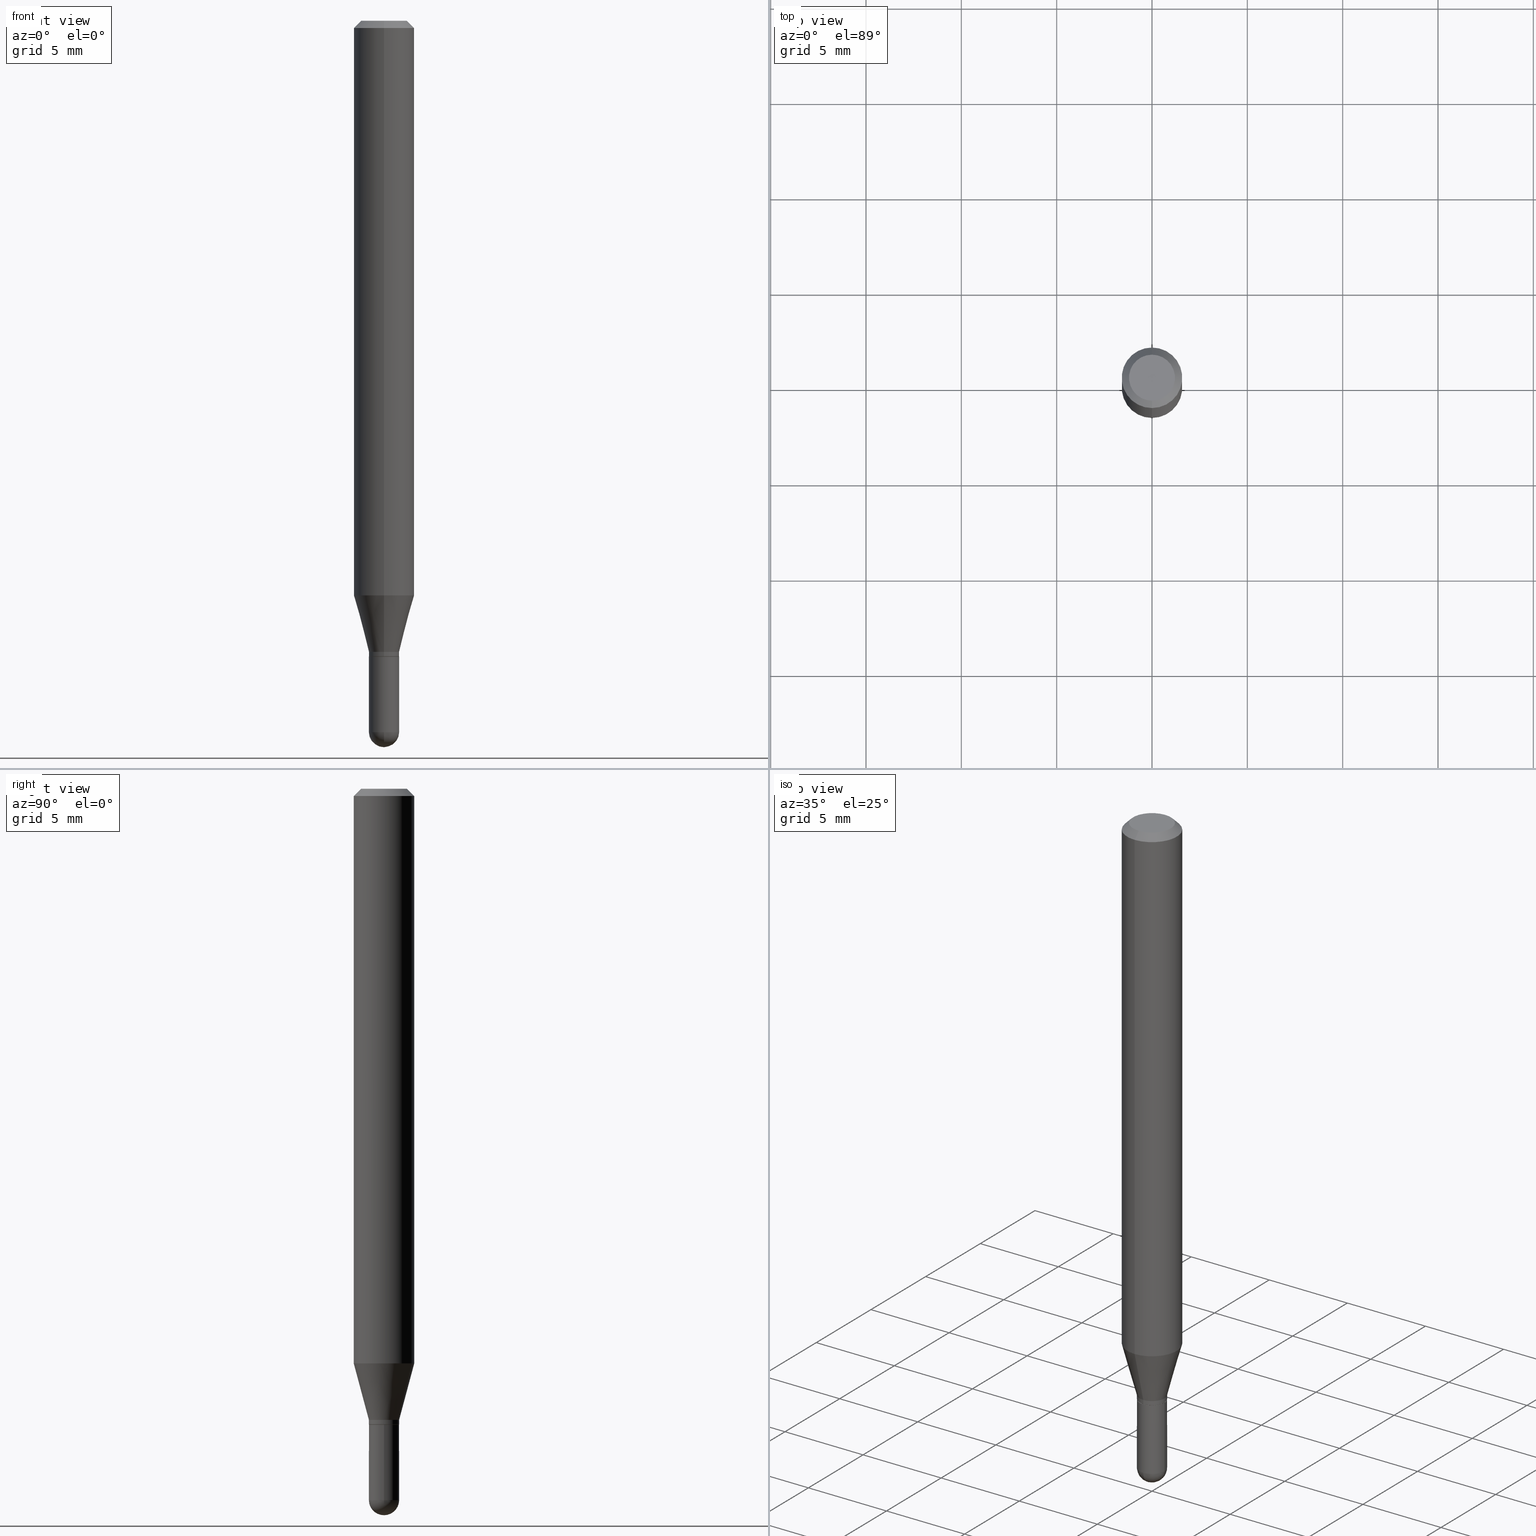
[diagram: canonical four-view strip — front | top / right | iso, engineering-drawing reading convention]
A machine part, canonical four-view strip (front | top / right | iso — engineering-drawing reading convention). The complete STEP part file that produces these views, byte-faithful:
ISO-10303-21;
HEADER;
FILE_DESCRIPTION (( 'STEP AP203' ),
    '1' );
FILE_NAME ('91267.STEP',
    '2024-03-08T13:40:38',
    ( '' ),
    ( '' ),
    'SwSTEP 2.0',
    'SolidWorks 2023',
    '' );
FILE_SCHEMA (( 'CONFIG_CONTROL_DESIGN' ));
ENDSEC;

DATA;
#1 = DIRECTION ( 'NONE',  ( -7.105427357601001859E-15, -1.000000000000000000, 0.000000000000000000 ) ) ;
#2 = ORIENTED_EDGE ( 'NONE', *, *, #235, .F. ) ;
#3 = PERSON_AND_ORGANIZATION ( #491, #252 ) ;
#4 = SHAPE_DEFINITION_REPRESENTATION ( #205, #375 ) ;
#5 = EDGE_LOOP ( 'NONE', ( #219, #83, #27, #449, #45 ) ) ;
#6 = EDGE_CURVE ( 'NONE', #424, #481, #35, .T. ) ;
#7 = CYLINDRICAL_SURFACE ( 'NONE', #453, 0.03124999999999939285 ) ;
#8 = ORIENTED_EDGE ( 'NONE', *, *, #6, .T. ) ;
#9 = CIRCLE ( 'NONE', #63, 0.06249999999999999306 ) ;
#10 = AXIS2_PLACEMENT_3D ( 'NONE', #221, #493, #180 ) ;
#11 = LOCAL_TIME ( 8, 40, 38.00000000000000000, #60 ) ;
#12 =( LENGTH_UNIT ( ) NAMED_UNIT ( * ) SI_UNIT ( $, .METRE. ) );
#13 = EDGE_CURVE ( 'NONE', #325, #158, #240, .T. ) ;
#14 = DIRECTION ( 'NONE',  ( -6.982962677686265922E-15, -1.000000000000000000, 4.370956789862821938E-15 ) ) ;
#15 = CARTESIAN_POINT ( 'NONE',  ( -2.220446049249960559E-16, -0.03125000000000523193, -1.468749999999999556 ) ) ;
#16 = DIRECTION ( 'NONE',  ( -6.982962677686265133E-15, -1.000000000000000000, 0.000000000000000000 ) ) ;
#17 = CARTESIAN_POINT ( 'NONE',  ( 4.440892098500914096E-16, 0.06249999999999582279, -1.186373412263470595 ) ) ;
#18 = DIRECTION ( 'NONE',  ( -6.982962677686265922E-15, -1.000000000000000000, 3.487252007655688453E-15 ) ) ;
#19 = VECTOR ( 'NONE', #136, 39.37007874015748143 ) ;
#20 = CIRCLE ( 'NONE', #262, 0.04750000000000004219 ) ;
#21 = DIRECTION ( 'NONE',  ( -2.448422132368495575E-29, 3.487252007655688059E-15, 1.000000000000000000 ) ) ;
#22 = ADVANCED_FACE ( 'NONE', ( #291 ), #478, .T. ) ;
#23 = CARTESIAN_POINT ( 'NONE',  ( 0.000000000000000000, 0.000000000000000000, 0.000000000000000000 ) ) ;
#24 = APPROVAL_ROLE ( '' ) ;
#25 = CC_DESIGN_DATE_AND_TIME_ASSIGNMENT ( #504, #157, ( #292 ) ) ;
#26 = VECTOR ( 'NONE', #444, 39.37007874015748143 ) ;
#27 = ORIENTED_EDGE ( 'NONE', *, *, #450, .T. ) ;
#28 = DIRECTION ( 'NONE',  ( 1.000000000000000000, -6.982962677686267499E-15, 0.000000000000000000 ) ) ;
#29 = ADVANCED_FACE ( 'NONE', ( #203 ), #7, .T. ) ;
#30 = FACE_OUTER_BOUND ( 'NONE', #78, .T. ) ;
#31 = DIRECTION ( 'NONE',  ( -6.982962677686265922E-15, -1.000000000000000000, 3.487252007655688059E-15 ) ) ;
#32 = ORIENTED_EDGE ( 'NONE', *, *, #263, .F. ) ;
#33 = CARTESIAN_POINT ( 'NONE',  ( -2.147261023388176740E-16, -0.03075000000000417330, -1.312999999999999945 ) ) ;
#34 = CARTESIAN_POINT ( 'NONE',  ( 3.672633198552774961E-31, -5.230878011483577990E-17, -0.01500000000000012955 ) ) ;
#35 = CIRCLE ( 'NONE', #161, 0.06249999999999999306 ) ;
#36 = CYLINDRICAL_SURFACE ( 'NONE', #216, 0.03124999999999956285 ) ;
#37 = EDGE_LOOP ( 'NONE', ( #399, #49, #356, #167 ) ) ;
#38 = CARTESIAN_POINT ( 'NONE',  ( -0.03124999999999956285, -4.634169502238430896E-15, -1.468749999999999556 ) ) ;
#39 = ORIENTED_EDGE ( 'NONE', *, *, #293, .F. ) ;
#40 = CARTESIAN_POINT ( 'NONE',  ( 0.000000000000000000, 0.000000000000000000, 0.000000000000000000 ) ) ;
#41 = ORIENTED_EDGE ( 'NONE', *, *, #498, .F. ) ;
#42 = AXIS2_PLACEMENT_3D ( 'NONE', #141, #107, #472 ) ;
#43 = PERSON_AND_ORGANIZATION ( #491, #252 ) ;
#44 = FACE_OUTER_BOUND ( 'NONE', #5, .T. ) ;
#45 = ORIENTED_EDGE ( 'NONE', *, *, #408, .F. ) ;
#46 =( CONVERSION_BASED_UNIT ( 'INCH', #209 ) LENGTH_UNIT ( ) NAMED_UNIT ( #386 ) );
#47 = UNCERTAINTY_MEASURE_WITH_UNIT (LENGTH_MEASURE( 1.000000000000000082E-05 ), #46, 'distance_accuracy_value', 'NONE');
#48 = DIRECTION ( 'NONE',  ( -6.982962677686265922E-15, -1.000000000000000000, 0.000000000000000000 ) ) ;
#49 = ORIENTED_EDGE ( 'NONE', *, *, #331, .T. ) ;
#50 = ADVANCED_FACE ( 'NONE', ( #328 ), #102, .F. ) ;
#51 = EDGE_LOOP ( 'NONE', ( #195, #66, #320, #110 ) ) ;
#52 = AXIS2_PLACEMENT_3D ( 'NONE', #332, #494, #260 ) ;
#53 = AXIS2_PLACEMENT_3D ( 'NONE', #395, #347, #470 ) ;
#54 = DIRECTION ( 'NONE',  ( -6.982962677686265922E-15, -1.000000000000000000, 0.000000000000000000 ) ) ;
#55 = EDGE_CURVE ( 'NONE', #418, #89, #67, .T. ) ;
#56 = ORIENTED_EDGE ( 'NONE', *, *, #95, .F. ) ;
#57 = VECTOR ( 'NONE', #451, 39.37007874015748143 ) ;
#58 = AXIS2_PLACEMENT_3D ( 'NONE', #118, #109, #267 ) ;
#59 = CARTESIAN_POINT ( 'NONE',  ( -2.147261023388176740E-16, -0.03075000000000417330, -1.312999999999999945 ) ) ;
#60 = COORDINATED_UNIVERSAL_TIME_OFFSET ( 5, 0, .BEHIND. ) ;
#61 = DIRECTION ( 'NONE',  ( -2.448422132368495575E-29, 3.487252007655688059E-15, 1.000000000000000000 ) ) ;
#62 = CARTESIAN_POINT ( 'NONE',  ( 2.220446049250581294E-16, 0.03124999999999474032, -1.302999999999999714 ) ) ;
#63 = AXIS2_PLACEMENT_3D ( 'NONE', #358, #188, #416 ) ;
#64 = APPROVAL_PERSON_ORGANIZATION ( #467, #443, #81 ) ;
#65 = CARTESIAN_POINT ( 'NONE',  ( 3.214778259799833764E-29, -4.578761886051918340E-15, -1.312999999999999945 ) ) ;
#66 = ORIENTED_EDGE ( 'NONE', *, *, #144, .T. ) ;
#67 = LINE ( 'NONE', #369, #302 ) ;
#68 = DIRECTION ( 'NONE',  ( -2.448422132368495575E-29, 3.487252007655688059E-15, 1.000000000000000000 ) ) ;
#69 = CARTESIAN_POINT ( 'NONE',  ( 2.182175836777293120E-16, 0.03124999999999452868, -1.468749999999999556 ) ) ;
#70 = ORIENTED_EDGE ( 'NONE', *, *, #132, .T. ) ;
#71 = LINE ( 'NONE', #428, #133 ) ;
#72 = DIRECTION ( 'NONE',  ( 6.982962677686265922E-15, 1.000000000000000000, -3.487252007655688059E-15 ) ) ;
#73 = CIRCLE ( 'NONE', #432, 0.03124999999999956285 ) ;
#74 = ORIENTED_EDGE ( 'NONE', *, *, #421, .F. ) ;
#75 = DIRECTION ( 'NONE',  ( -2.448422132368495295E-29, 3.487252007655688059E-15, 1.000000000000000000 ) ) ;
#76 = ORIENTED_EDGE ( 'NONE', *, *, #388, .F. ) ;
#77 = PLANE ( 'NONE',  #354 ) ;
#78 = EDGE_LOOP ( 'NONE', ( #176, #278, #56, #311 ) ) ;
#79 = APPROVAL_STATUS ( 'not_yet_approved' ) ;
#80 = LINE ( 'NONE', #466, #303 ) ;
#81 = APPROVAL_ROLE ( '' ) ;
#82 = AXIS2_PLACEMENT_3D ( 'NONE', #457, #100, #258 ) ;
#83 = ORIENTED_EDGE ( 'NONE', *, *, #263, .T. ) ;
#84 = CARTESIAN_POINT ( 'NONE',  ( 3.210900542521084024E-29, -4.584314997901049810E-15, -1.312999999999999945 ) ) ;
#85 = CARTESIAN_POINT ( 'NONE',  ( -0.03124999999999956285, 2.220446049250282019E-16, -1.537167215704636512E-30 ) ) ;
#86 = ORIENTED_EDGE ( 'NONE', *, *, #323, .T. ) ;
#87 =( NAMED_UNIT ( * ) SI_UNIT ( $, .STERADIAN. ) SOLID_ANGLE_UNIT ( ) );
#88 = CARTESIAN_POINT ( 'NONE',  ( 3.192810954353404437E-45, -4.547474172626968714E-31, -1.304027974647010610E-16 ) ) ;
#89 = VERTEX_POINT ( 'NONE', #500 ) ;
#90 = CLOSED_SHELL ( 'NONE', ( #117, #121, #50, #404, #314 ) ) ;
#91 = CC_DESIGN_APPROVAL ( #482, ( #318 ) ) ;
#92 = CARTESIAN_POINT ( 'NONE',  ( -4.364351673553916201E-16, -0.06250000000000000000, 2.179532504784805037E-16 ) ) ;
#93 = CALENDAR_DATE ( 2024, 8, 3 ) ;
#94 = PERSON_AND_ORGANIZATION_ROLE ( 'creator' ) ;
#95 = EDGE_CURVE ( 'NONE', #440, #126, #111, .T. ) ;
#96 = SPHERICAL_SURFACE ( 'NONE', #10, 0.03125000000000019429 ) ;
#97 = CALENDAR_DATE ( 2024, 8, 3 ) ;
#98 = CIRCLE ( 'NONE', #420, 0.04750000000000004219 ) ;
#99 = LOCAL_TIME ( 8, 40, 38.00000000000000000, #452 ) ;
#100 = DIRECTION ( 'NONE',  ( -2.445468806185136597E-29, 3.491481338843145583E-15, 1.000000000000000000 ) ) ;
#101 = EDGE_CURVE ( 'NONE', #158, #325, #327, .T. ) ;
#102 = PLANE ( 'NONE',  #367 ) ;
#103 = EDGE_CURVE ( 'NONE', #440, #237, #497, .T. ) ;
#104 = AXIS2_PLACEMENT_3D ( 'NONE', #23, #172, #31 ) ;
#105 = APPROVAL_PERSON_ORGANIZATION ( #43, #482, #24 ) ;
#106 = CARTESIAN_POINT ( 'NONE',  ( 3.330669073875748681E-16, 0.03124999999999473685, -1.302999999999999714 ) ) ;
#107 = DIRECTION ( 'NONE',  ( -1.000000000000000000, 6.982962677686265922E-15, -4.883557194083112901E-29 ) ) ;
#108 = DIRECTION ( 'NONE',  ( -6.982962677686265922E-15, -1.000000000000000000, 0.000000000000000000 ) ) ;
#109 = DIRECTION ( 'NONE',  ( -2.445468806185136597E-29, 3.491481338843145583E-15, 1.000000000000000000 ) ) ;
#110 = ORIENTED_EDGE ( 'NONE', *, *, #508, .F. ) ;
#111 = CIRCLE ( 'NONE', #226, 0.03124999999999950040 ) ;
#112 = CARTESIAN_POINT ( 'NONE',  ( 2.202682480856599234E-16, 0.03074999999999501396, -1.312999999999999945 ) ) ;
#113 = CC_DESIGN_PERSON_AND_ORGANIZATION_ASSIGNMENT ( #329, #442, ( #292 ) ) ;
#114 = ORIENTED_EDGE ( 'NONE', *, *, #448, .F. ) ;
#115 = DIRECTION ( 'NONE',  ( -2.448422132368495575E-29, 3.487252007655688059E-15, 1.000000000000000000 ) ) ;
#116 = VERTEX_POINT ( 'NONE', #410 ) ;
#117 = ADVANCED_FACE ( 'NONE', ( #138 ), #140, .T. ) ;
#118 = CARTESIAN_POINT ( 'NONE',  ( 3.591782309084418255E-29, -5.128113216425867498E-15, -1.468749999999999556 ) ) ;
#119 = ORIENTED_EDGE ( 'NONE', *, *, #485, .F. ) ;
#120 = DIRECTION ( 'NONE',  ( -2.448422132368495575E-29, 3.487252007655688059E-15, 1.000000000000000000 ) ) ;
#121 = ADVANCED_FACE ( 'NONE', ( #454 ), #96, .T. ) ;
#122 = AXIS2_PLACEMENT_3D ( 'NONE', #413, #377, #28 ) ;
#123 = ORIENTED_EDGE ( 'NONE', *, *, #448, .T. ) ;
#124 = CIRCLE ( 'NONE', #58, 0.03124999999999956285 ) ;
#125 = CARTESIAN_POINT ( 'NONE',  ( 3.190294038476148960E-29, -4.543889365975361704E-15, -1.302999999999999714 ) ) ;
#126 = VERTEX_POINT ( 'NONE', #295 ) ;
#127 = CARTESIAN_POINT ( 'NONE',  ( 3.279702199342737368E-29, -5.575029696072707502E-15, -1.468749999999999556 ) ) ;
#128 = PERSON_AND_ORGANIZATION_ROLE ( 'design_supplier' ) ;
#129 = LINE ( 'NONE', #85, #151 ) ;
#130 = PRODUCT ( '91267', '91267', '', ( #403 ) ) ;
#131 = AXIS2_PLACEMENT_3D ( 'NONE', #306, #241, #312 ) ;
#132 = EDGE_CURVE ( 'NONE', #418, #201, #362, .T. ) ;
#133 = VECTOR ( 'NONE', #146, 39.37007874015748143 ) ;
#134 = EDGE_CURVE ( 'NONE', #474, #392, #280, .T. ) ;
#135 = ORIENTED_EDGE ( 'NONE', *, *, #350, .F. ) ;
#136 = DIRECTION ( 'NONE',  ( -2.448422132368495295E-29, 3.487252007655688059E-15, 1.000000000000000000 ) ) ;
#137 = LOCAL_TIME ( 8, 40, 38.00000000000000000, #459 ) ;
#138 = FACE_OUTER_BOUND ( 'NONE', #233, .T. ) ;
#139 = APPLICATION_CONTEXT ( 'configuration controlled 3d designs of mechanical parts and assemblies' ) ;
#140 = CYLINDRICAL_SURFACE ( 'NONE', #501, 0.03124999999999956285 ) ;
#141 = CARTESIAN_POINT ( 'NONE',  ( 3.279702199342737368E-29, -5.575029696072707502E-15, -1.468749999999999556 ) ) ;
#142 = CIRCLE ( 'NONE', #422, 0.03124999999999928529 ) ;
#143 = FACE_OUTER_BOUND ( 'NONE', #273, .T. ) ;
#144 = EDGE_CURVE ( 'NONE', #149, #424, #412, .T. ) ;
#145 = CARTESIAN_POINT ( 'NONE',  ( 3.192810954353404437E-45, -4.547474172626968714E-31, -1.304027974647010610E-16 ) ) ;
#146 = DIRECTION ( 'NONE',  ( -4.851104656540959542E-15, -0.7071067811865493491, -0.7071067811865456854 ) ) ;
#147 = DIRECTION ( 'NONE',  ( -2.448422132368495575E-29, 3.487252007655688059E-15, 1.000000000000000000 ) ) ;
#148 = APPROVAL_DATE_TIME ( #281, #443 ) ;
#149 = VERTEX_POINT ( 'NONE', #106 ) ;
#150 = DIRECTION ( 'NONE',  ( -2.448422132368495575E-29, 3.487252007655688059E-15, 1.000000000000000000 ) ) ;
#151 = VECTOR ( 'NONE', #341, 39.37007874015748143 ) ;
#152 = ADVANCED_FACE ( 'NONE', ( #371 ), #255, .T. ) ;
#153 = ORIENTED_EDGE ( 'NONE', *, *, #408, .T. ) ;
#154 = APPROVAL_DATE_TIME ( #256, #264 ) ;
#155 = APPLICATION_CONTEXT ( 'configuration controlled 3d designs of mechanical parts and assemblies' ) ;
#156 = CARTESIAN_POINT ( 'NONE',  ( -3.773273898774342241E-16, -0.04750000000000004219, 3.524167289894427289E-17 ) ) ;
#157 = DATE_TIME_ROLE ( 'classification_date' ) ;
#158 = VERTEX_POINT ( 'NONE', #59 ) ;
#159 = CARTESIAN_POINT ( 'NONE',  ( -4.364351673553627281E-16, -0.06250000000000416334, -1.186373412263470373 ) ) ;
#160 = ORIENTED_EDGE ( 'NONE', *, *, #417, .T. ) ;
#161 = AXIS2_PLACEMENT_3D ( 'NONE', #402, #245, #14 ) ;
#162 = ORIENTED_EDGE ( 'NONE', *, *, #508, .T. ) ;
#163 = APPROVAL_PERSON_ORGANIZATION ( #365, #264, #238 ) ;
#164 = MANIFOLD_SOLID_BREP ( 'Body-Move/Copy2[2]', #499 ) ;
#165 = DIRECTION ( 'NONE',  ( 1.000000000000000000, -6.982962677686265922E-15, 4.883557194083112340E-29 ) ) ;
#166 = CARTESIAN_POINT ( 'NONE',  ( 3.672633198552774961E-31, -5.230878011483577990E-17, -0.01500000000000012955 ) ) ;
#167 = ORIENTED_EDGE ( 'NONE', *, *, #103, .F. ) ;
#168 = DATE_TIME_ROLE ( 'creation_date' ) ;
#169 = ADVANCED_FACE ( 'NONE', ( #217 ), #269, .T. ) ;
#170 = AXIS2_PLACEMENT_3D ( 'NONE', #464, #147, #108 ) ;
#171 = CC_DESIGN_PERSON_AND_ORGANIZATION_ASSIGNMENT ( #3, #475, ( #373 ) ) ;
#172 = DIRECTION ( 'NONE',  ( -2.448422132368495575E-29, 3.487252007655688059E-15, 1.000000000000000000 ) ) ;
#173 = AXIS2_PLACEMENT_3D ( 'NONE', #40, #430, #468 ) ;
#174 = AXIS2_PLACEMENT_3D ( 'NONE', #510, #150, #484 ) ;
#175 = EDGE_CURVE ( 'NONE', #201, #243, #343, .T. ) ;
#176 = ORIENTED_EDGE ( 'NONE', *, *, #101, .T. ) ;
#177 = FACE_OUTER_BOUND ( 'NONE', #438, .T. ) ;
#178 = PRODUCT_RELATED_PRODUCT_CATEGORY ( 'detail', '', ( #130 ) ) ;
#179 = CARTESIAN_POINT ( 'NONE',  ( 3.214778259799833764E-29, -4.578761886051918340E-15, -1.312999999999999945 ) ) ;
#180 = DIRECTION ( 'NONE',  ( 6.982962677686265922E-15, 1.000000000000000000, 0.000000000000000000 ) ) ;
#181 = ORIENTED_EDGE ( 'NONE', *, *, #134, .T. ) ;
#182 = VECTOR ( 'NONE', #346, 39.37007874015748143 ) ;
#183 = CYLINDRICAL_SURFACE ( 'NONE', #53, 0.06250000000000000000 ) ;
#184 = ORIENTED_EDGE ( 'NONE', *, *, #323, .F. ) ;
#185 = ADVANCED_FACE ( 'NONE', ( #177 ), #319, .T. ) ;
#186 = CARTESIAN_POINT ( 'NONE',  ( 3.316907271900979054E-16, 0.04750000000000004219, -2.308458690959958706E-16 ) ) ;
#187 = EDGE_LOOP ( 'NONE', ( #268, #153 ) ) ;
#188 = DIRECTION ( 'NONE',  ( -2.448422132368495575E-29, 3.487252007655688059E-15, 1.000000000000000000 ) ) ;
#189 = EDGE_CURVE ( 'NONE', #116, #301, #98, .T. ) ;
#190 = ORIENTED_EDGE ( 'NONE', *, *, #144, .F. ) ;
#191 = CONICAL_SURFACE ( 'NONE', #487, 0.06250000000000001388, 0.7853981633974473908 ) ;
#192 = CARTESIAN_POINT ( 'NONE',  ( 3.279702199342737368E-29, -5.575029696072707502E-15, -1.468749999999999556 ) ) ;
#193 = CONICAL_SURFACE ( 'NONE', #368, 0.03074999999999959363, 0.7853981633974568277 ) ;
#194 = ORIENTED_EDGE ( 'NONE', *, *, #134, .F. ) ;
#195 = ORIENTED_EDGE ( 'NONE', *, *, #439, .T. ) ;
#196 = DATE_AND_TIME ( #97, #99 ) ;
#197 = LOCAL_TIME ( 8, 40, 38.00000000000000000, #200 ) ;
#198 = DIRECTION ( 'NONE',  ( -2.448422132368495575E-29, 3.487252007655688059E-15, 1.000000000000000000 ) ) ;
#199 = DIRECTION ( 'NONE',  ( -6.982962677686265133E-15, -1.000000000000000000, 3.487252007655688059E-15 ) ) ;
#200 = COORDINATED_UNIVERSAL_TIME_OFFSET ( 5, 0, .BEHIND. ) ;
#201 = VERTEX_POINT ( 'NONE', #69 ) ;
#202 = DIRECTION ( 'NONE',  ( -2.448422132368495295E-29, 3.487252007655688059E-15, 1.000000000000000000 ) ) ;
#203 = FACE_OUTER_BOUND ( 'NONE', #37, .T. ) ;
#204 = ORIENTED_EDGE ( 'NONE', *, *, #388, .T. ) ;
#205 = PRODUCT_DEFINITION_SHAPE ( 'NONE', 'NONE',  #318 ) ;
#206 = DIRECTION ( 'NONE',  ( -2.448422132368495575E-29, 3.487252007655688059E-15, 1.000000000000000000 ) ) ;
#207 = ORIENTED_EDGE ( 'NONE', *, *, #421, .T. ) ;
#208 = VECTOR ( 'NONE', #75, 39.37007874015748143 ) ;
#209 = LENGTH_MEASURE_WITH_UNIT ( LENGTH_MEASURE( 0.02539999999999999897 ), #12 );
#210 = CC_DESIGN_PERSON_AND_ORGANIZATION_ASSIGNMENT ( #214, #128, ( #373 ) ) ;
#211 = DIRECTION ( 'NONE',  ( -2.448422132368495575E-29, 3.487252007655688059E-15, 1.000000000000000000 ) ) ;
#212 = DIRECTION ( 'NONE',  ( 1.000000000000000000, -6.982962677686267499E-15, 0.000000000000000000 ) ) ;
#213 = CARTESIAN_POINT ( 'NONE',  ( 3.214778259799833764E-29, -4.578761886051918340E-15, -1.312999999999999945 ) ) ;
#214 = PERSON_AND_ORGANIZATION ( #491, #252 ) ;
#215 = ADVANCED_FACE ( 'NONE', ( #307 ), #225, .T. ) ;
#216 = AXIS2_PLACEMENT_3D ( 'NONE', #265, #348, #506 ) ;
#217 = FACE_OUTER_BOUND ( 'NONE', #465, .T. ) ;
#218 = DIRECTION ( 'NONE',  ( -6.982962677686265922E-15, -1.000000000000000000, 3.483106191921934765E-15 ) ) ;
#219 = ORIENTED_EDGE ( 'NONE', *, *, #376, .F. ) ;
#220 = AXIS2_PLACEMENT_3D ( 'NONE', #84, #239, #315 ) ;
#221 = CARTESIAN_POINT ( 'NONE',  ( 3.279702199342737368E-29, -5.575029696072707502E-15, -1.468749999999999556 ) ) ;
#222 = DIRECTION ( 'NONE',  ( -2.445468806185136597E-29, 3.491481338843145583E-15, 1.000000000000000000 ) ) ;
#223 = ADVANCED_FACE ( 'NONE', ( #503 ), #191, .T. ) ;
#224 = DIRECTION ( 'NONE',  ( -6.982962677686265133E-15, -1.000000000000000000, 0.000000000000000000 ) ) ;
#225 = CYLINDRICAL_SURFACE ( 'NONE', #173, 0.03124999999999939285 ) ;
#226 = AXIS2_PLACEMENT_3D ( 'NONE', #299, #334, #380 ) ;
#227 = AXIS2_PLACEMENT_3D ( 'NONE', #304, #222, #379 ) ;
#228 = CARTESIAN_POINT ( 'NONE',  ( 4.364351673553921131E-16, 0.06249999999999996531, -0.01500000000000034812 ) ) ;
#229 = CALENDAR_DATE ( 2024, 8, 3 ) ;
#230 = ORIENTED_EDGE ( 'NONE', *, *, #231, .T. ) ;
#231 = EDGE_CURVE ( 'NONE', #481, #424, #9, .T. ) ;
#232 = FACE_OUTER_BOUND ( 'NONE', #349, .T. ) ;
#233 = EDGE_LOOP ( 'NONE', ( #352, #471, #119, #483, #70 ) ) ;
#234 = DATE_AND_TIME ( #374, #11 ) ;
#235 = EDGE_CURVE ( 'NONE', #116, #392, #355, .T. ) ;
#236 = DIRECTION ( 'NONE',  ( -6.982962677686265922E-15, -1.000000000000000000, 3.487252007655688059E-15 ) ) ;
#237 = VERTEX_POINT ( 'NONE', #275 ) ;
#238 = APPROVAL_ROLE ( '' ) ;
#239 = DIRECTION ( 'NONE',  ( -2.445468806185136597E-29, 3.491481338843145583E-15, 1.000000000000000000 ) ) ;
#240 = CIRCLE ( 'NONE', #445, 0.03074999999999959363 ) ;
#241 = DIRECTION ( 'NONE',  ( 2.448422132368495575E-29, -3.487252007655688059E-15, -1.000000000000000000 ) ) ;
#242 = CIRCLE ( 'NONE', #446, 0.06250000000000001388 ) ;
#243 = VERTEX_POINT ( 'NONE', #38 ) ;
#244 = DIRECTION ( 'NONE',  ( -2.448422132368495575E-29, 3.487252007655688059E-15, 1.000000000000000000 ) ) ;
#245 = DIRECTION ( 'NONE',  ( -2.448422132368495575E-29, 3.487252007655688059E-15, 1.000000000000000000 ) ) ;
#246 = ADVANCED_FACE ( 'NONE', ( #391 ), #183, .T. ) ;
#247 = ORIENTED_EDGE ( 'NONE', *, *, #463, .F. ) ;
#248 = LINE ( 'NONE', #251, #26 ) ;
#249 = EDGE_LOOP ( 'NONE', ( #114, #204, #181, #2 ) ) ;
#250 = EDGE_CURVE ( 'NONE', #325, #126, #80, .T. ) ;
#251 = CARTESIAN_POINT ( 'NONE',  ( -2.182175836776589308E-16, -0.03125000000000383027, -1.302999999999999714 ) ) ;
#252 = ORGANIZATION ( 'UNSPECIFIED', 'UNSPECIFIED', '' ) ;
#253 = DIRECTION ( 'NONE',  ( -2.448422132368495575E-29, 3.487252007655688059E-15, 1.000000000000000000 ) ) ;
#254 = COORDINATED_UNIVERSAL_TIME_OFFSET ( 5, 0, .BEHIND. ) ;
#255 = CYLINDRICAL_SURFACE ( 'NONE', #104, 0.06250000000000000000 ) ;
#256 = DATE_AND_TIME ( #93, #363 ) ;
#257 =( GEOMETRIC_REPRESENTATION_CONTEXT ( 3 ) GLOBAL_UNCERTAINTY_ASSIGNED_CONTEXT ( ( #47 ) ) GLOBAL_UNIT_ASSIGNED_CONTEXT ( ( #46, #436, #87 ) ) REPRESENTATION_CONTEXT ( 'NONE', 'WORKASPACE' ) );
#258 = DIRECTION ( 'NONE',  ( 1.000000000000000000, -6.982962677686267499E-15, 0.000000000000000000 ) ) ;
#259 = CARTESIAN_POINT ( 'NONE',  ( 3.672633198552774961E-31, -5.230878011483577990E-17, -0.01500000000000012955 ) ) ;
#260 = DIRECTION ( 'NONE',  ( -6.982962677686265133E-15, -1.000000000000000000, 0.000000000000000000 ) ) ;
#261 = VECTOR ( 'NONE', #310, 39.37007874015748143 ) ;
#262 = AXIS2_PLACEMENT_3D ( 'NONE', #88, #244, #433 ) ;
#263 = EDGE_CURVE ( 'NONE', #243, #480, #124, .T. ) ;
#264 = APPROVAL ( #79, 'UNSPECIFIED' ) ;
#265 = CARTESIAN_POINT ( 'NONE',  ( 0.000000000000000000, 0.000000000000000000, 0.000000000000000000 ) ) ;
#266 = FACE_OUTER_BOUND ( 'NONE', #390, .T. ) ;
#267 = DIRECTION ( 'NONE',  ( 1.000000000000000000, -6.982962677686267499E-15, 0.000000000000000000 ) ) ;
#268 = ORIENTED_EDGE ( 'NONE', *, *, #485, .T. ) ;
#269 = CONICAL_SURFACE ( 'NONE', #52, 0.03074999999999959363, 0.7853981633974568277 ) ;
#270 = CIRCLE ( 'NONE', #333, 0.03124999999999928529 ) ;
#271 = CARTESIAN_POINT ( 'NONE',  ( 4.440892098500920012E-16, 0.06249999999999996531, -0.01500000000000034812 ) ) ;
#272 = LINE ( 'NONE', #423, #208 ) ;
#273 = EDGE_LOOP ( 'NONE', ( #396, #123 ) ) ;
#274 = ADVANCED_FACE ( 'NONE', ( #143 ), #419, .F. ) ;
#275 = CARTESIAN_POINT ( 'NONE',  ( -2.182175836776589308E-16, -0.03125000000000383027, -1.302999999999999714 ) ) ;
#276 = ORIENTED_EDGE ( 'NONE', *, *, #13, .F. ) ;
#277 = FACE_OUTER_BOUND ( 'NONE', #489, .T. ) ;
#278 = ORIENTED_EDGE ( 'NONE', *, *, #250, .T. ) ;
#279 = DIRECTION ( 'NONE',  ( -2.445468806185136597E-29, 3.491481338843145583E-15, 1.000000000000000000 ) ) ;
#280 = CIRCLE ( 'NONE', #414, 0.06250000000000001388 ) ;
#281 = DATE_AND_TIME ( #229, #197 ) ;
#282 = CIRCLE ( 'NONE', #479, 0.03125000000000019429 ) ;
#283 = EDGE_LOOP ( 'NONE', ( #135, #8, #313, #434 ) ) ;
#284 = LINE ( 'NONE', #322, #384 ) ;
#285 = ADVANCED_FACE ( 'NONE', ( #277 ), #77, .F. ) ;
#286 = ORIENTED_EDGE ( 'NONE', *, *, #498, .T. ) ;
#287 = DIRECTION ( 'NONE',  ( 0.000000000000000000, 0.000000000000000000, 1.000000000000000000 ) ) ;
#288 = SECURITY_CLASSIFICATION_LEVEL ( 'unclassified' ) ;
#289 = DIRECTION ( 'NONE',  ( 1.000000000000000000, 0.000000000000000000, 0.000000000000000000 ) ) ;
#290 = AXIS2_PLACEMENT_3D ( 'NONE', #65, #21, #458 ) ;
#291 = FACE_OUTER_BOUND ( 'NONE', #51, .T. ) ;
#292 = SECURITY_CLASSIFICATION ( '', '', #288 ) ;
#293 = EDGE_CURVE ( 'NONE', #511, #480, #393, .T. ) ;
#294 = PERSON_AND_ORGANIZATION_ROLE ( 'design_owner' ) ;
#295 = CARTESIAN_POINT ( 'NONE',  ( 2.220446049250590661E-16, 0.03124999999999481318, -1.312500000000000000 ) ) ;
#296 = DIRECTION ( 'NONE',  ( 2.438088387897960049E-29, -3.491481338843145188E-15, -1.000000000000000000 ) ) ;
#297 = CARTESIAN_POINT ( 'NONE',  ( 0.000000000000000000, 0.000000000000000000, 0.000000000000000000 ) ) ;
#298 = CC_DESIGN_PERSON_AND_ORGANIZATION_ASSIGNMENT ( #490, #94, ( #318 ) ) ;
#299 = CARTESIAN_POINT ( 'NONE',  ( 3.213554048733650477E-29, -4.577018260048090430E-15, -1.312500000000000000 ) ) ;
#300 = CARTESIAN_POINT ( 'NONE',  ( 2.182175836777248993E-16, 0.03124999999999497971, -1.312999999999999945 ) ) ;
#301 = VERTEX_POINT ( 'NONE', #156 ) ;
#302 = VECTOR ( 'NONE', #461, 39.37007874015748143 ) ;
#303 = VECTOR ( 'NONE', #473, 39.37007874015748143 ) ;
#304 = CARTESIAN_POINT ( 'NONE',  ( 3.210900542521084024E-29, -4.584314997901049810E-15, -1.312999999999999945 ) ) ;
#305 = DIRECTION ( 'NONE',  ( 2.448422132368495575E-29, -3.487252007655688059E-15, -1.000000000000000000 ) ) ;
#306 = CARTESIAN_POINT ( 'NONE',  ( 3.672633198552774961E-31, -5.230878011483577990E-17, -0.01500000000000012955 ) ) ;
#307 = FACE_OUTER_BOUND ( 'NONE', #308, .T. ) ;
#308 = EDGE_LOOP ( 'NONE', ( #431, #86, #359, #74 ) ) ;
#309 = AXIS2_PLACEMENT_3D ( 'NONE', #321, #287, #289 ) ;
#310 = DIRECTION ( 'NONE',  ( 4.937700262164543309E-15, 0.7071067811865444641, -0.7071067811865505703 ) ) ;
#311 = ORIENTED_EDGE ( 'NONE', *, *, #417, .F. ) ;
#312 = DIRECTION ( 'NONE',  ( 6.982962677686265922E-15, 1.000000000000000000, -3.483106191921934765E-15 ) ) ;
#313 = ORIENTED_EDGE ( 'NONE', *, *, #463, .T. ) ;
#314 = ADVANCED_FACE ( 'NONE', ( #44 ), #36, .T. ) ;
#315 = DIRECTION ( 'NONE',  ( 1.000000000000000000, -6.982962677686267499E-15, 0.000000000000000000 ) ) ;
#316 = EDGE_LOOP ( 'NONE', ( #230, #387, #194, #247 ) ) ;
#317 = CARTESIAN_POINT ( 'NONE',  ( 0.03124999999999956285, -5.074431690841150939E-15, -1.468749999999999556 ) ) ;
#318 = PRODUCT_DEFINITION ( 'UNKNOWN', '', #373, #406 ) ;
#319 = CONICAL_SURFACE ( 'NONE', #131, 0.06250000000000001388, 0.7853981633974473908 ) ;
#320 = ORIENTED_EDGE ( 'NONE', *, *, #231, .F. ) ;
#321 = CARTESIAN_POINT ( 'NONE',  ( 0.000000000000000000, 0.000000000000000000, 0.000000000000000000 ) ) ;
#322 = CARTESIAN_POINT ( 'NONE',  ( 4.440892098500625669E-16, 0.06250000000000000000, -2.179532504784805037E-16 ) ) ;
#323 = EDGE_CURVE ( 'NONE', #126, #440, #415, .T. ) ;
#324 = CARTESIAN_POINT ( 'NONE',  ( 3.357459296862866067E-29, -5.682224977287888472E-15, -1.499999999999999556 ) ) ;
#325 = VERTEX_POINT ( 'NONE', #112 ) ;
#326 = CARTESIAN_POINT ( 'NONE',  ( 3.190294038476148960E-29, -4.543889365975361704E-15, -1.302999999999999714 ) ) ;
#327 = CIRCLE ( 'NONE', #290, 0.03074999999999959363 ) ;
#328 = FACE_OUTER_BOUND ( 'NONE', #187, .T. ) ;
#329 = PERSON_AND_ORGANIZATION ( #491, #252 ) ;
#330 = CIRCLE ( 'NONE', #220, 0.03124999999999956285 ) ;
#331 = EDGE_CURVE ( 'NONE', #126, #149, #272, .T. ) ;
#332 = CARTESIAN_POINT ( 'NONE',  ( 3.214778259799833764E-29, -4.578761886051918340E-15, -1.312999999999999945 ) ) ;
#333 = AXIS2_PLACEMENT_3D ( 'NONE', #326, #120, #401 ) ;
#334 = DIRECTION ( 'NONE',  ( -2.448422132368495575E-29, 3.487252007655688059E-15, 1.000000000000000000 ) ) ;
#335 = ADVANCED_FACE ( 'NONE', ( #232 ), #462, .T. ) ;
#336 = ORIENTED_EDGE ( 'NONE', *, *, #235, .T. ) ;
#337 = MANIFOLD_SOLID_BREP ( 'Body-Move/Copy2[1]', #90 ) ;
#338 = CARTESIAN_POINT ( 'NONE',  ( -2.182175836776915699E-16, -0.03124999999999939285, 1.089766252392381441E-16 ) ) ;
#339 = CALENDAR_DATE ( 2024, 8, 3 ) ;
#340 = CC_DESIGN_DATE_AND_TIME_ASSIGNMENT ( #196, #168, ( #318 ) ) ;
#341 = DIRECTION ( 'NONE',  ( -2.445468806185136877E-29, 3.491481338843145188E-15, 1.000000000000000000 ) ) ;
#342 = DIRECTION ( 'NONE',  ( -2.445468806185136597E-29, 3.491481338843145583E-15, 1.000000000000000000 ) ) ;
#343 = CIRCLE ( 'NONE', #122, 0.03124999999999956285 ) ;
#344 = APPROVAL_DATE_TIME ( #234, #482 ) ;
#345 = CIRCLE ( 'NONE', #227, 0.03124999999999956285 ) ;
#346 = DIRECTION ( 'NONE',  ( -4.937700262164589852E-15, -0.7071067811865511255, 0.7071067811865439090 ) ) ;
#347 = DIRECTION ( 'NONE',  ( -2.448422132368495575E-29, 3.487252007655688059E-15, 1.000000000000000000 ) ) ;
#348 = DIRECTION ( 'NONE',  ( -2.445468806185136597E-29, 3.491481338843145583E-15, 1.000000000000000000 ) ) ;
#349 = EDGE_LOOP ( 'NONE', ( #190, #207, #162, #496 ) ) ;
#350 = EDGE_CURVE ( 'NONE', #424, #392, #284, .T. ) ;
#351 = CARTESIAN_POINT ( 'NONE',  ( 3.214778259799833764E-29, -4.578761886051918340E-15, -1.312999999999999945 ) ) ;
#352 = ORIENTED_EDGE ( 'NONE', *, *, #175, .T. ) ;
#353 = AXIS2_PLACEMENT_3D ( 'NONE', #488, #398, #48 ) ;
#354 = AXIS2_PLACEMENT_3D ( 'NONE', #351, #389, #236 ) ;
#355 = LINE ( 'NONE', #228, #261 ) ;
#356 = ORIENTED_EDGE ( 'NONE', *, *, #439, .F. ) ;
#357 = CARTESIAN_POINT ( 'NONE',  ( -4.364351673553913736E-16, -0.06250000000000006939, -0.01499999999999991271 ) ) ;
#358 = CARTESIAN_POINT ( 'NONE',  ( 2.904742919839414695E-29, -4.137183063745116506E-15, -1.186373412263470595 ) ) ;
#359 = ORIENTED_EDGE ( 'NONE', *, *, #103, .T. ) ;
#360 = DIRECTION ( 'NONE',  ( 6.982962677686265922E-15, 1.000000000000000000, 0.000000000000000000 ) ) ;
#361 = ORIENTED_EDGE ( 'NONE', *, *, #101, .F. ) ;
#362 = CIRCLE ( 'NONE', #82, 0.03124999999999956285 ) ;
#363 = LOCAL_TIME ( 8, 40, 38.00000000000000000, #254 ) ;
#364 = CARTESIAN_POINT ( 'NONE',  ( -0.03124999999999956285, -4.634169502238430896E-15, -1.312999999999999945 ) ) ;
#365 = PERSON_AND_ORGANIZATION ( #491, #252 ) ;
#366 = DIRECTION ( 'NONE',  ( -2.448422132368495295E-29, 3.487252007655688059E-15, 1.000000000000000000 ) ) ;
#367 = AXIS2_PLACEMENT_3D ( 'NONE', #300, #296, #492 ) ;
#368 = AXIS2_PLACEMENT_3D ( 'NONE', #179, #68, #224 ) ;
#369 = CARTESIAN_POINT ( 'NONE',  ( 0.03124999999999956285, -2.182175836776928025E-16, 1.523805242436208565E-30 ) ) ;
#370 = EDGE_CURVE ( 'NONE', #392, #474, #242, .T. ) ;
#371 = FACE_OUTER_BOUND ( 'NONE', #283, .T. ) ;
#372 = DIRECTION ( 'NONE',  ( 1.000000000000000000, -6.982962677686267499E-15, 4.876176775795935793E-29 ) ) ;
#373 = PRODUCT_DEFINITION_FORMATION_WITH_SPECIFIED_SOURCE ( 'ANY', '', #130, .NOT_KNOWN. ) ;
#374 = CALENDAR_DATE ( 2024, 8, 3 ) ;
#375 = ADVANCED_BREP_SHAPE_REPRESENTATION ( '91267', ( #337, #164, #309 ), #257 ) ;
#376 = EDGE_CURVE ( 'NONE', #243, #495, #129, .T. ) ;
#377 = DIRECTION ( 'NONE',  ( -2.445468806185136597E-29, 3.491481338843145583E-15, 1.000000000000000000 ) ) ;
#378 = EDGE_LOOP ( 'NONE', ( #41, #509, #32, #460 ) ) ;
#379 = DIRECTION ( 'NONE',  ( 1.000000000000000000, -6.982962677686267499E-15, 0.000000000000000000 ) ) ;
#380 = DIRECTION ( 'NONE',  ( -6.982962677686265922E-15, -1.000000000000000000, 0.000000000000000000 ) ) ;
#381 = LINE ( 'NONE', #33, #182 ) ;
#382 = DIRECTION ( 'NONE',  ( 6.982962677686265922E-15, 1.000000000000000000, -3.483106191921934765E-15 ) ) ;
#383 = ORIENTED_EDGE ( 'NONE', *, *, #13, .T. ) ;
#384 = VECTOR ( 'NONE', #366, 39.37007874015748143 ) ;
#385 = DIRECTION ( 'NONE',  ( -1.000000000000000000, 7.105427357601001070E-15, -4.926315508542082329E-29 ) ) ;
#386 = DIMENSIONAL_EXPONENTS ( 1.000000000000000000, 0.000000000000000000, 0.000000000000000000, 0.000000000000000000, 0.000000000000000000, 0.000000000000000000, 0.000000000000000000 ) ;
#387 = ORIENTED_EDGE ( 'NONE', *, *, #350, .T. ) ;
#388 = EDGE_CURVE ( 'NONE', #301, #474, #71, .T. ) ;
#389 = DIRECTION ( 'NONE',  ( -2.448422132368495295E-29, 3.487252007655688059E-15, 1.000000000000000000 ) ) ;
#390 = EDGE_LOOP ( 'NONE', ( #39, #286, #469, #427 ) ) ;
#391 = FACE_OUTER_BOUND ( 'NONE', #316, .T. ) ;
#392 = VERTEX_POINT ( 'NONE', #271 ) ;
#393 = CIRCLE ( 'NONE', #455, 0.03125000000000019429 ) ;
#394 = APPLICATION_PROTOCOL_DEFINITION ( 'international standard', 'config_control_design', 1994, #155 ) ;
#395 = CARTESIAN_POINT ( 'NONE',  ( 0.000000000000000000, 0.000000000000000000, 0.000000000000000000 ) ) ;
#396 = ORIENTED_EDGE ( 'NONE', *, *, #189, .T. ) ;
#397 = LINE ( 'NONE', #92, #502 ) ;
#398 = DIRECTION ( 'NONE',  ( -2.448422132368495575E-29, 3.487252007655688059E-15, 1.000000000000000000 ) ) ;
#399 = ORIENTED_EDGE ( 'NONE', *, *, #95, .T. ) ;
#400 = CARTESIAN_POINT ( 'NONE',  ( 3.591782309084418255E-29, -5.128113216425867498E-15, -1.468749999999999556 ) ) ;
#401 = DIRECTION ( 'NONE',  ( -6.982962677686265922E-15, -1.000000000000000000, 0.000000000000000000 ) ) ;
#402 = CARTESIAN_POINT ( 'NONE',  ( 2.904742919839414695E-29, -4.137183063745116506E-15, -1.186373412263470595 ) ) ;
#403 = MECHANICAL_CONTEXT ( 'NONE', #139, 'mechanical' ) ;
#404 = ADVANCED_FACE ( 'NONE', ( #266 ), #425, .T. ) ;
#405 = ORIENTED_EDGE ( 'NONE', *, *, #250, .F. ) ;
#406 = DESIGN_CONTEXT ( 'detailed design', #155, 'design' ) ;
#407 = AXIS2_PLACEMENT_3D ( 'NONE', #186, #426, #72 ) ;
#408 = EDGE_CURVE ( 'NONE', #495, #89, #345, .T. ) ;
#409 = APPROVAL_STATUS ( 'not_yet_approved' ) ;
#410 = CARTESIAN_POINT ( 'NONE',  ( 3.840629472727450339E-16, 0.04750000000000004219, -2.960472678283463395E-16 ) ) ;
#411 = ADVANCED_FACE ( 'NONE', ( #30 ), #193, .T. ) ;
#412 = LINE ( 'NONE', #62, #57 ) ;
#413 = CARTESIAN_POINT ( 'NONE',  ( 3.591782309084418255E-29, -5.128113216425867498E-15, -1.468749999999999556 ) ) ;
#414 = AXIS2_PLACEMENT_3D ( 'NONE', #259, #61, #218 ) ;
#415 = CIRCLE ( 'NONE', #170, 0.03124999999999950040 ) ;
#416 = DIRECTION ( 'NONE',  ( -6.982962677686265922E-15, -1.000000000000000000, 4.370956789862821938E-15 ) ) ;
#417 = EDGE_CURVE ( 'NONE', #158, #440, #381, .T. ) ;
#418 = VERTEX_POINT ( 'NONE', #317 ) ;
#419 = PLANE ( 'NONE',  #407 ) ;
#420 = AXIS2_PLACEMENT_3D ( 'NONE', #145, #115, #199 ) ;
#421 = EDGE_CURVE ( 'NONE', #149, #237, #270, .T. ) ;
#422 = AXIS2_PLACEMENT_3D ( 'NONE', #125, #198, #54 ) ;
#423 = CARTESIAN_POINT ( 'NONE',  ( 2.220446049250269693E-16, 0.03124999999999939285, -1.089766252392381441E-16 ) ) ;
#424 = VERTEX_POINT ( 'NONE', #17 ) ;
#425 = SPHERICAL_SURFACE ( 'NONE', #42, 0.03125000000000019429 ) ;
#426 = DIRECTION ( 'NONE',  ( 2.448422132368495295E-29, -3.487252007655688059E-15, -1.000000000000000000 ) ) ;
#427 = ORIENTED_EDGE ( 'NONE', *, *, #450, .F. ) ;
#428 = CARTESIAN_POINT ( 'NONE',  ( -4.287811248607204268E-16, -0.06250000000000006939, -0.01499999999999991271 ) ) ;
#429 = CC_DESIGN_PERSON_AND_ORGANIZATION_ASSIGNMENT ( #441, #294, ( #130 ) ) ;
#430 = DIRECTION ( 'NONE',  ( -2.448422132368495575E-29, 3.487252007655688059E-15, 1.000000000000000000 ) ) ;
#431 = ORIENTED_EDGE ( 'NONE', *, *, #331, .F. ) ;
#432 = AXIS2_PLACEMENT_3D ( 'NONE', #400, #279, #212 ) ;
#433 = DIRECTION ( 'NONE',  ( -6.982962677686265133E-15, -1.000000000000000000, 3.487252007655688059E-15 ) ) ;
#434 = ORIENTED_EDGE ( 'NONE', *, *, #370, .F. ) ;
#435 = CC_DESIGN_SECURITY_CLASSIFICATION ( #292, ( #373 ) ) ;
#436 =( NAMED_UNIT ( * ) PLANE_ANGLE_UNIT ( ) SI_UNIT ( $, .RADIAN. ) );
#437 = DIRECTION ( 'NONE',  ( -6.982962677686265922E-15, -1.000000000000000000, 3.483106191921934765E-15 ) ) ;
#438 = EDGE_LOOP ( 'NONE', ( #76, #477, #336, #505 ) ) ;
#439 = EDGE_CURVE ( 'NONE', #237, #149, #142, .T. ) ;
#440 = VERTEX_POINT ( 'NONE', #476 ) ;
#441 = PERSON_AND_ORGANIZATION ( #491, #252 ) ;
#442 = PERSON_AND_ORGANIZATION_ROLE ( 'classification_officer' ) ;
#443 = APPROVAL ( #507, 'UNSPECIFIED' ) ;
#444 = DIRECTION ( 'NONE',  ( -1.807323732225336450E-15, -0.2588190451025190741, 0.9659258262890687563 ) ) ;
#445 = AXIS2_PLACEMENT_3D ( 'NONE', #213, #211, #16 ) ;
#446 = AXIS2_PLACEMENT_3D ( 'NONE', #166, #206, #437 ) ;
#447 = CARTESIAN_POINT ( 'NONE',  ( 0.000000000000000000, 0.000000000000000000, 0.000000000000000000 ) ) ;
#448 = EDGE_CURVE ( 'NONE', #301, #116, #20, .T. ) ;
#449 = ORIENTED_EDGE ( 'NONE', *, *, #55, .T. ) ;
#450 = EDGE_CURVE ( 'NONE', #480, #418, #73, .T. ) ;
#451 = DIRECTION ( 'NONE',  ( 1.839019923739606626E-15, 0.2588190451025258465, 0.9659258262890669799 ) ) ;
#452 = COORDINATED_UNIVERSAL_TIME_OFFSET ( 5, 0, .BEHIND. ) ;
#453 = AXIS2_PLACEMENT_3D ( 'NONE', #447, #253, #18 ) ;
#454 = FACE_OUTER_BOUND ( 'NONE', #378, .T. ) ;
#455 = AXIS2_PLACEMENT_3D ( 'NONE', #192, #385, #1 ) ;
#456 = CC_DESIGN_APPROVAL ( #443, ( #292 ) ) ;
#457 = CARTESIAN_POINT ( 'NONE',  ( 3.591782309084418255E-29, -5.128113216425867498E-15, -1.468749999999999556 ) ) ;
#458 = DIRECTION ( 'NONE',  ( -6.982962677686265133E-15, -1.000000000000000000, 0.000000000000000000 ) ) ;
#459 = COORDINATED_UNIVERSAL_TIME_OFFSET ( 5, 0, .BEHIND. ) ;
#460 = ORIENTED_EDGE ( 'NONE', *, *, #175, .F. ) ;
#461 = DIRECTION ( 'NONE',  ( -2.445468806185136877E-29, 3.491481338843145188E-15, 1.000000000000000000 ) ) ;
#462 = CONICAL_SURFACE ( 'NONE', #174, 0.03124999999999928529, 0.2617993877991511842 ) ;
#463 = EDGE_CURVE ( 'NONE', #481, #474, #397, .T. ) ;
#464 = CARTESIAN_POINT ( 'NONE',  ( 3.213554048733650477E-29, -4.577018260048090430E-15, -1.312500000000000000 ) ) ;
#465 = EDGE_LOOP ( 'NONE', ( #405, #383, #160, #184 ) ) ;
#466 = CARTESIAN_POINT ( 'NONE',  ( 2.184918912462600412E-16, 0.03074999999999501396, -1.312999999999999945 ) ) ;
#467 = PERSON_AND_ORGANIZATION ( #491, #252 ) ;
#468 = DIRECTION ( 'NONE',  ( -6.982962677686265922E-15, -1.000000000000000000, 3.487252007655688453E-15 ) ) ;
#469 = ORIENTED_EDGE ( 'NONE', *, *, #132, .F. ) ;
#470 = DIRECTION ( 'NONE',  ( -6.982962677686265922E-15, -1.000000000000000000, 3.487252007655688059E-15 ) ) ;
#471 = ORIENTED_EDGE ( 'NONE', *, *, #376, .T. ) ;
#472 = DIRECTION ( 'NONE',  ( 6.982962677686265922E-15, 1.000000000000000000, 0.000000000000000000 ) ) ;
#473 = DIRECTION ( 'NONE',  ( 5.024295867788104988E-15, 0.7071067811865560104, 0.7071067811865390240 ) ) ;
#474 = VERTEX_POINT ( 'NONE', #357 ) ;
#475 = PERSON_AND_ORGANIZATION_ROLE ( 'creator' ) ;
#476 = CARTESIAN_POINT ( 'NONE',  ( -2.182175836776609276E-16, -0.03125000000000418415, -1.312500000000000000 ) ) ;
#477 = ORIENTED_EDGE ( 'NONE', *, *, #189, .F. ) ;
#478 = CONICAL_SURFACE ( 'NONE', #353, 0.03124999999999928529, 0.2617993877991511842 ) ;
#479 = AXIS2_PLACEMENT_3D ( 'NONE', #127, #165, #360 ) ;
#480 = VERTEX_POINT ( 'NONE', #15 ) ;
#481 = VERTEX_POINT ( 'NONE', #159 ) ;
#482 = APPROVAL ( #409, 'UNSPECIFIED' ) ;
#483 = ORIENTED_EDGE ( 'NONE', *, *, #55, .F. ) ;
#484 = DIRECTION ( 'NONE',  ( -6.982962677686265922E-15, -1.000000000000000000, 0.000000000000000000 ) ) ;
#485 = EDGE_CURVE ( 'NONE', #89, #495, #330, .T. ) ;
#486 = APPLICATION_PROTOCOL_DEFINITION ( 'international standard', 'config_control_design', 1994, #139 ) ;
#487 = AXIS2_PLACEMENT_3D ( 'NONE', #34, #305, #382 ) ;
#488 = CARTESIAN_POINT ( 'NONE',  ( 3.190294038476148960E-29, -4.543889365975361704E-15, -1.302999999999999714 ) ) ;
#489 = EDGE_LOOP ( 'NONE', ( #361, #276 ) ) ;
#490 = PERSON_AND_ORGANIZATION ( #491, #252 ) ;
#491 = PERSON ( 'UNSPECIFIED', 'UNSPECIFIED', 'UNSPECIFIED', ('UNSPECIFIED'), ('UNSPECIFIED'), ('UNSPECIFIED') ) ;
#492 = DIRECTION ( 'NONE',  ( -1.000000000000000000, 6.982962677686265922E-15, -4.876176775795935793E-29 ) ) ;
#493 = DIRECTION ( 'NONE',  ( -1.000000000000000000, 6.982962677686265922E-15, -4.883557194083112901E-29 ) ) ;
#494 = DIRECTION ( 'NONE',  ( -2.448422132368495575E-29, 3.487252007655688059E-15, 1.000000000000000000 ) ) ;
#495 = VERTEX_POINT ( 'NONE', #364 ) ;
#496 = ORIENTED_EDGE ( 'NONE', *, *, #6, .F. ) ;
#497 = LINE ( 'NONE', #338, #19 ) ;
#498 = EDGE_CURVE ( 'NONE', #511, #201, #282, .T. ) ;
#499 = CLOSED_SHELL ( 'NONE', ( #29, #411, #223, #246, #22, #335, #152, #185, #274, #285, #169, #215 ) ) ;
#500 = CARTESIAN_POINT ( 'NONE',  ( 0.03124999999999956285, -4.802532581578742489E-15, -1.312999999999999945 ) ) ;
#501 = AXIS2_PLACEMENT_3D ( 'NONE', #297, #342, #372 ) ;
#502 = VECTOR ( 'NONE', #202, 39.37007874015748143 ) ;
#503 = FACE_OUTER_BOUND ( 'NONE', #249, .T. ) ;
#504 = DATE_AND_TIME ( #339, #137 ) ;
#505 = ORIENTED_EDGE ( 'NONE', *, *, #370, .T. ) ;
#506 = DIRECTION ( 'NONE',  ( 1.000000000000000000, -6.982962677686267499E-15, 4.876176775795935793E-29 ) ) ;
#507 = APPROVAL_STATUS ( 'not_yet_approved' ) ;
#508 = EDGE_CURVE ( 'NONE', #237, #481, #248, .T. ) ;
#509 = ORIENTED_EDGE ( 'NONE', *, *, #293, .T. ) ;
#510 = CARTESIAN_POINT ( 'NONE',  ( 3.190294038476148960E-29, -4.543889365975361704E-15, -1.302999999999999714 ) ) ;
#511 = VERTEX_POINT ( 'NONE', #324 ) ;
#512 = CC_DESIGN_APPROVAL ( #264, ( #373 ) ) ;
ENDSEC;
END-ISO-10303-21;
